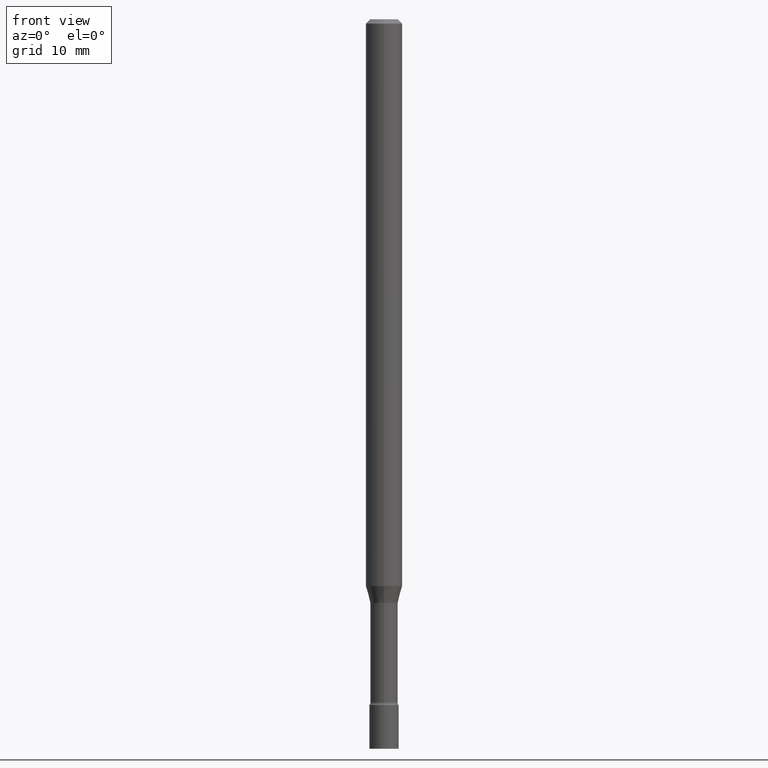
[diagram: clean part render]
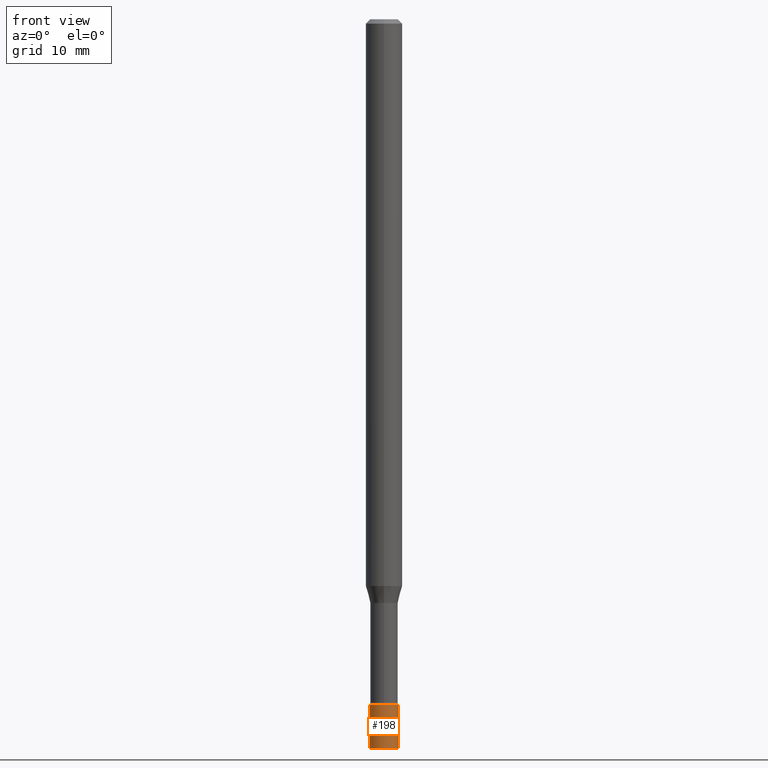
[diagram: same view with one face highlighted and labeled with its STEP entity id]
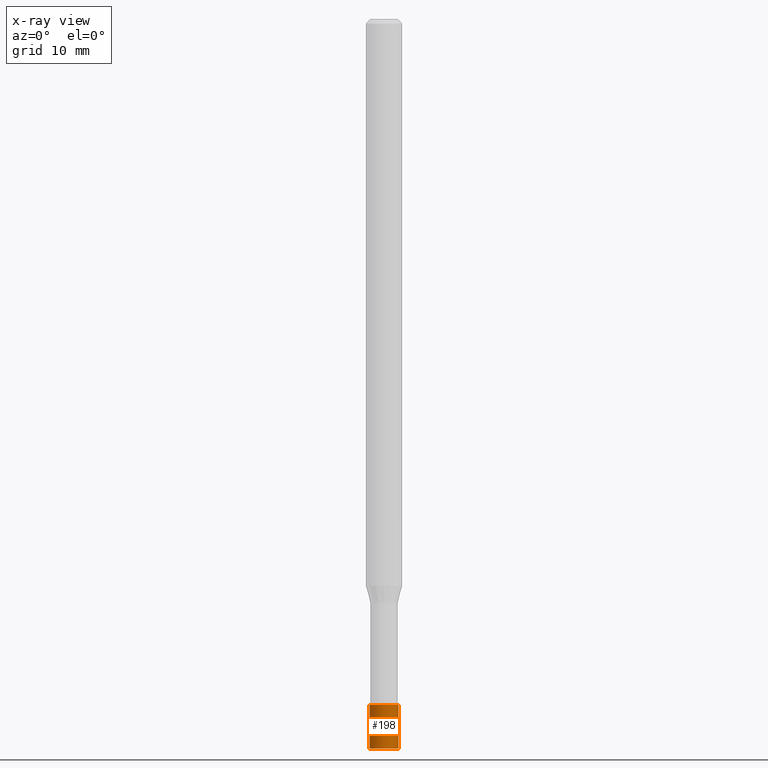
[diagram: x-ray of the same camera — body ghosted, the highlighted face saturated]
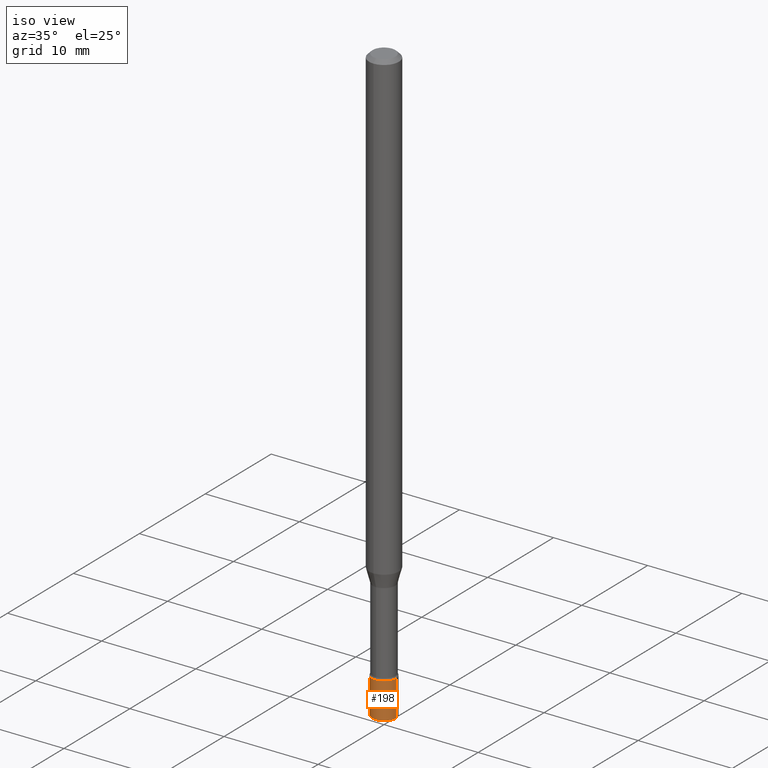
[diagram: same view with one face highlighted and labeled with its STEP entity id]
A machine part, front view. The second image highlights one B-rep face of the part: STEP entity #198.
The next image is the same camera in x-ray: the body ghosted, the highlighted face saturated — about 0% of this face is hidden behind the body in this view.
A second angle (iso view) of the same face is appended — the face is thin or edge-on in the first view.
In plain terms, the highlighted cylindrical surface (edge-blend (fillet) strip) has radius 1.27 mm, axis along (-0, 0, 1).
Its self-contained STEP definition (entity closure, byte-faithful):
#7 = ORIENTED_EDGE ( 'NONE', *, *, #103, .T. ) ;
#10 = LINE ( 'NONE', #492, #140 ) ;
#19 = FACE_OUTER_BOUND ( 'NONE', #88, .T. ) ;
#40 = VERTEX_POINT ( 'NONE', #272 ) ;
#51 = CARTESIAN_POINT ( 'NONE',  ( 5.746851694535070554E-29, -8.204981146281391784E-15, -2.350000000000000089 ) ) ;
#75 = CARTESIAN_POINT ( 'NONE',  ( 6.113672015462842613E-29, -8.728703347107864943E-15, -2.500000000000000000 ) ) ;
#88 = EDGE_LOOP ( 'NONE', ( #132, #182, #7, #139 ) ) ;
#103 = EDGE_CURVE ( 'NONE', #40, #497, #10, .T. ) ;
#130 = DIRECTION ( 'NONE',  ( -2.445468806185136597E-29, 3.491481338843145583E-15, 1.000000000000000000 ) ) ;
#132 = ORIENTED_EDGE ( 'NONE', *, *, #180, .F. ) ;
#133 = DIRECTION ( 'NONE',  ( -2.445468806185136597E-29, 3.491481338843145583E-15, 1.000000000000000000 ) ) ;
#139 = ORIENTED_EDGE ( 'NONE', *, *, #223, .F. ) ;
#140 = VECTOR ( 'NONE', #415, 39.37007874015748143 ) ;
#164 = DIRECTION ( 'NONE',  ( -2.445468806185136877E-29, 3.491481338843145188E-15, 1.000000000000000000 ) ) ;
#179 = AXIS2_PLACEMENT_3D ( 'NONE', #75, #357, #483 ) ;
#180 = EDGE_CURVE ( 'NONE', #287, #364, #412, .T. ) ;
#182 = ORIENTED_EDGE ( 'NONE', *, *, #459, .T. ) ;
#198 = ADVANCED_FACE ( 'NONE', ( #19 ), #330, .T. ) ;
#201 = CARTESIAN_POINT ( 'NONE',  ( -0.05000000000000000278, 3.552713678800501127E-16, -2.459467545127453311E-30 ) ) ;
#213 = CARTESIAN_POINT ( 'NONE',  ( -0.05000000000000000278, -8.111570878814577955E-15, -2.500000000000000000 ) ) ;
#223 = EDGE_CURVE ( 'NONE', #364, #497, #434, .T. ) ;
#225 = VECTOR ( 'NONE', #164, 39.37007874015748143 ) ;
#236 = DIRECTION ( 'NONE',  ( 1.000000000000000000, -6.982962677686274599E-15, 0.000000000000000000 ) ) ;
#237 = AXIS2_PLACEMENT_3D ( 'NONE', #335, #130, #494 ) ;
#261 = CIRCLE ( 'NONE', #179, 0.05000000000000000278 ) ;
#272 = CARTESIAN_POINT ( 'NONE',  ( 0.05000000000000000278, -9.077851480992178278E-15, -2.500000000000000000 ) ) ;
#287 = VERTEX_POINT ( 'NONE', #213 ) ;
#330 = CYLINDRICAL_SURFACE ( 'NONE', #237, 0.05000000000000000278 ) ;
#335 = CARTESIAN_POINT ( 'NONE',  ( 0.000000000000000000, 0.000000000000000000, 0.000000000000000000 ) ) ;
#357 = DIRECTION ( 'NONE',  ( -2.445468806185136597E-29, 3.491481338843145583E-15, 1.000000000000000000 ) ) ;
#364 = VERTEX_POINT ( 'NONE', #432 ) ;
#412 = LINE ( 'NONE', #201, #225 ) ;
#415 = DIRECTION ( 'NONE',  ( -2.445468806185136877E-29, 3.491481338843145188E-15, 1.000000000000000000 ) ) ;
#432 = CARTESIAN_POINT ( 'NONE',  ( -0.05000000000000000278, -8.111570878814577955E-15, -2.350000000000000089 ) ) ;
#434 = CIRCLE ( 'NONE', #447, 0.05000000000000000278 ) ;
#447 = AXIS2_PLACEMENT_3D ( 'NONE', #51, #133, #236 ) ;
#459 = EDGE_CURVE ( 'NONE', #287, #40, #261, .T. ) ;
#477 = CARTESIAN_POINT ( 'NONE',  ( 0.05000000000000000278, -8.554129280165706697E-15, -2.350000000000000089 ) ) ;
#483 = DIRECTION ( 'NONE',  ( 1.000000000000000000, -6.982962677686274599E-15, 0.000000000000000000 ) ) ;
#492 = CARTESIAN_POINT ( 'NONE',  ( 0.05000000000000000278, -3.491481338843133848E-16, 2.438088387897968247E-30 ) ) ;
#494 = DIRECTION ( 'NONE',  ( 1.000000000000000000, -6.982962677686267499E-15, 4.876176775795936353E-29 ) ) ;
#497 = VERTEX_POINT ( 'NONE', #477 ) ;